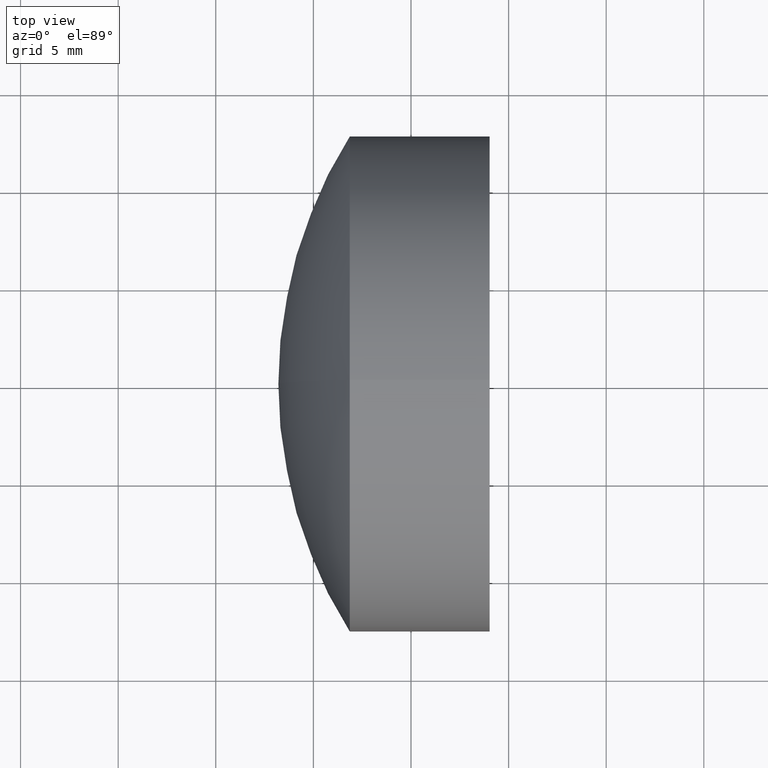
[diagram: clean part render]
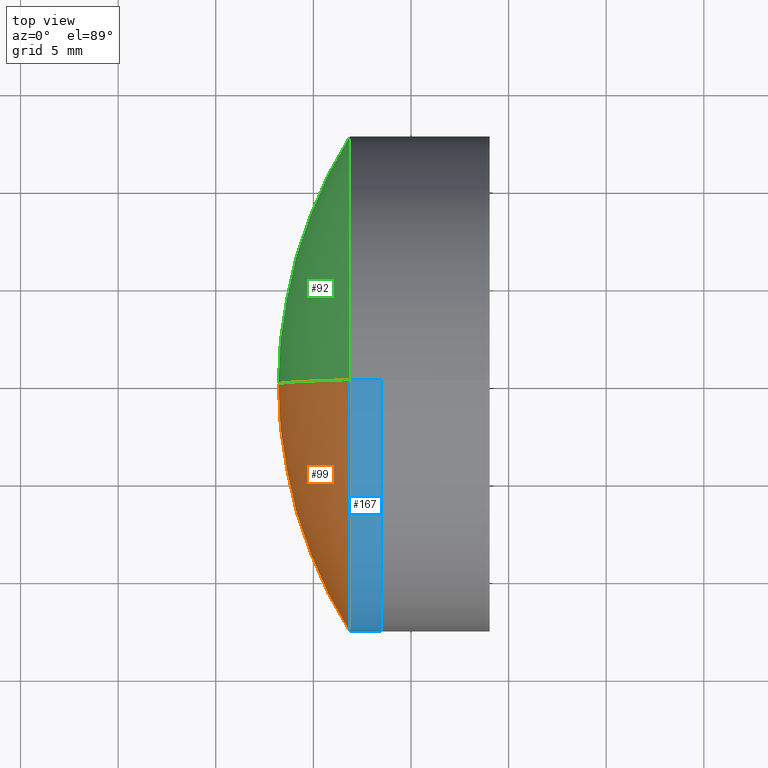
[diagram: same view with three faces highlighted in distinct colors, each labeled with its STEP entity id]
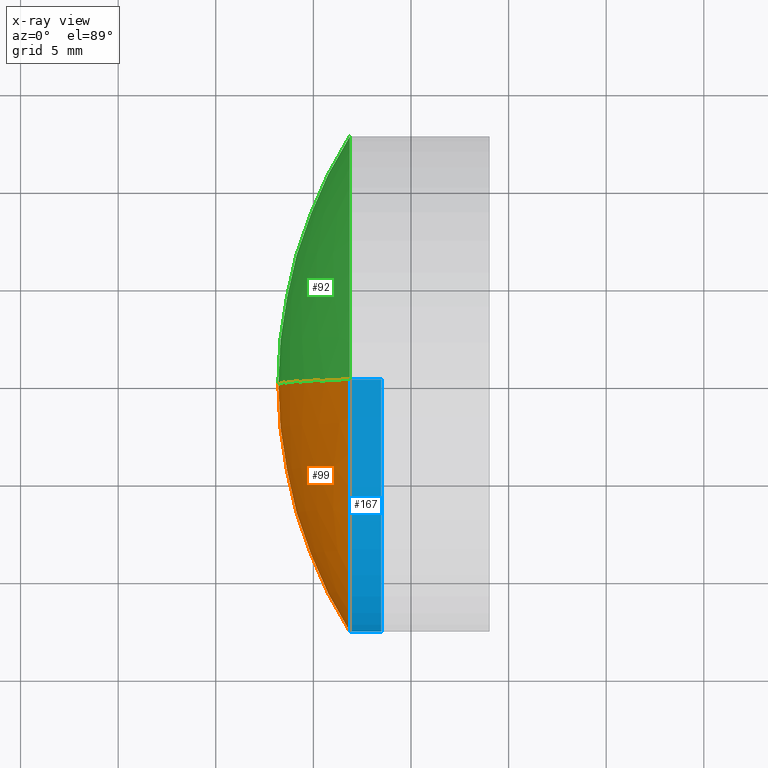
[diagram: x-ray of the same camera — body ghosted, the three highlighted faces saturated]
A machine part, top view with three faces highlighted in distinct colors.
The next image is the same camera in x-ray (body ghosted, the three faces saturated) — at least one of them is partly hidden behind the body in this view.
Their STEP definitions:

[orange] entity #99 — the highlighted spherical surface has radius 23.88 mm.
#1 = DIRECTION ( 'NONE',  ( 0.0000000000000000000, 1.000000000000000000, 0.0000000000000000000 ) ) ;
#20 = AXIS2_PLACEMENT_3D ( 'NONE', #57, #72, #110 ) ;
#25 = VERTEX_POINT ( 'NONE', #38 ) ;
#28 = DIRECTION ( 'NONE',  ( -1.000000000000000000, -0.0000000000000000000, -0.0000000000000000000 ) ) ;
#30 = CIRCLE ( 'NONE', #127, 23.87999999999999900 ) ;
#33 = EDGE_CURVE ( 'NONE', #25, #202, #288, .T. ) ;
#38 = CARTESIAN_POINT ( 'NONE',  ( 36.86375097237397100, 1.555301434917137400E-015, -12.69999999999999000 ) ) ;
#51 = SPHERICAL_SURFACE ( 'NONE', #209, 23.87999999999999900 ) ;
#57 = CARTESIAN_POINT ( 'NONE',  ( 57.08661921602329400, 0.0000000000000000000, -8.346372368148395400E-017 ) ) ;
#69 = CIRCLE ( 'NONE', #20, 23.87999999999999900 ) ;
#72 = DIRECTION ( 'NONE',  ( -0.0000000000000000000, 1.000000000000000000, 1.224646799147353200E-016 ) ) ;
#99 = ADVANCED_FACE ( 'NONE', ( #212 ), #51, .T. ) ;
#110 = DIRECTION ( 'NONE',  ( 0.0000000000000000000, -1.224646799147353000E-016, 1.000000000000000000 ) ) ;
#111 = CARTESIAN_POINT ( 'NONE',  ( 57.08661921602329400, 0.0000000000000000000, -8.346372368148395400E-017 ) ) ;
#127 = AXIS2_PLACEMENT_3D ( 'NONE', #155, #333, #290 ) ;
#129 = EDGE_CURVE ( 'NONE', #202, #294, #30, .T. ) ;
#133 = CARTESIAN_POINT ( 'NONE',  ( 36.86375097237397100, 0.0000000000000000000, 12.69999999999999000 ) ) ;
#155 = CARTESIAN_POINT ( 'NONE',  ( 57.08661921602329400, 0.0000000000000000000, -8.346372368148395400E-017 ) ) ;
#169 = CARTESIAN_POINT ( 'NONE',  ( 33.20661921602329900, 0.0000000000000000000, 1.378764554500455700E-015 ) ) ;
#176 = CARTESIAN_POINT ( 'NONE',  ( 36.86375097237397100, 0.0000000000000000000, 0.0000000000000000000 ) ) ;
#195 = EDGE_CURVE ( 'NONE', #25, #294, #69, .T. ) ;
#202 = VERTEX_POINT ( 'NONE', #133 ) ;
#209 = AXIS2_PLACEMENT_3D ( 'NONE', #111, #1, #344 ) ;
#212 = FACE_OUTER_BOUND ( 'NONE', #341, .T. ) ;
#225 = ORIENTED_EDGE ( 'NONE', *, *, #129, .T. ) ;
#227 = DIRECTION ( 'NONE',  ( 0.0000000000000000000, 0.0000000000000000000, 1.000000000000000000 ) ) ;
#239 = AXIS2_PLACEMENT_3D ( 'NONE', #176, #28, #227 ) ;
#248 = ORIENTED_EDGE ( 'NONE', *, *, #195, .F. ) ;
#288 = CIRCLE ( 'NONE', #239, 12.69999999999999400 ) ;
#290 = DIRECTION ( 'NONE',  ( 0.0000000000000000000, 0.0000000000000000000, -1.000000000000000000 ) ) ;
#294 = VERTEX_POINT ( 'NONE', #169 ) ;
#328 = ORIENTED_EDGE ( 'NONE', *, *, #33, .T. ) ;
#333 = DIRECTION ( 'NONE',  ( 0.0000000000000000000, -1.000000000000000000, 0.0000000000000000000 ) ) ;
#341 = EDGE_LOOP ( 'NONE', ( #248, #328, #225 ) ) ;
#344 = DIRECTION ( 'NONE',  ( 0.0000000000000000000, 0.0000000000000000000, 1.000000000000000000 ) ) ;

[blue] entity #167 — the highlighted cylindrical surface (partial cylindrical patch) has radius 12.7 mm, axis along (-1, -0, -0).
#4 = ORIENTED_EDGE ( 'NONE', *, *, #33, .F. ) ;
#21 = CIRCLE ( 'NONE', #297, 12.69999999999999400 ) ;
#25 = VERTEX_POINT ( 'NONE', #38 ) ;
#28 = DIRECTION ( 'NONE',  ( -1.000000000000000000, -0.0000000000000000000, -0.0000000000000000000 ) ) ;
#29 = EDGE_CURVE ( 'NONE', #231, #25, #322, .T. ) ;
#33 = EDGE_CURVE ( 'NONE', #25, #202, #288, .T. ) ;
#38 = CARTESIAN_POINT ( 'NONE',  ( 36.86375097237397100, 1.555301434917137400E-015, -12.69999999999999000 ) ) ;
#66 = CARTESIAN_POINT ( 'NONE',  ( -0.8160621761658039000, 0.0000000000000000000, 12.69999999999999400 ) ) ;
#68 = EDGE_LOOP ( 'NONE', ( #79, #253, #152, #4 ) ) ;
#79 = ORIENTED_EDGE ( 'NONE', *, *, #29, .F. ) ;
#83 = DIRECTION ( 'NONE',  ( -1.000000000000000000, -0.0000000000000000000, -0.0000000000000000000 ) ) ;
#91 = EDGE_CURVE ( 'NONE', #231, #241, #21, .T. ) ;
#95 = FACE_OUTER_BOUND ( 'NONE', #68, .T. ) ;
#100 = CARTESIAN_POINT ( 'NONE',  ( -0.8160621761658039000, 1.555301434917138000E-015, -12.69999999999999400 ) ) ;
#117 = CARTESIAN_POINT ( 'NONE',  ( -0.8160621761658039000, 0.0000000000000000000, 0.0000000000000000000 ) ) ;
#121 = EDGE_CURVE ( 'NONE', #241, #202, #135, .T. ) ;
#132 = AXIS2_PLACEMENT_3D ( 'NONE', #117, #339, #326 ) ;
#133 = CARTESIAN_POINT ( 'NONE',  ( 36.86375097237397100, 0.0000000000000000000, 12.69999999999999000 ) ) ;
#135 = LINE ( 'NONE', #66, #313 ) ;
#150 = DIRECTION ( 'NONE',  ( -1.000000000000000000, -0.0000000000000000000, -0.0000000000000000000 ) ) ;
#152 = ORIENTED_EDGE ( 'NONE', *, *, #121, .T. ) ;
#167 = ADVANCED_FACE ( 'NONE', ( #95 ), #310, .T. ) ;
#176 = CARTESIAN_POINT ( 'NONE',  ( 36.86375097237397100, 0.0000000000000000000, 0.0000000000000000000 ) ) ;
#202 = VERTEX_POINT ( 'NONE', #133 ) ;
#205 = CARTESIAN_POINT ( 'NONE',  ( 38.47534975385649100, 0.0000000000000000000, 0.0000000000000000000 ) ) ;
#215 = VECTOR ( 'NONE', #83, 1000.000000000000000 ) ;
#227 = DIRECTION ( 'NONE',  ( 0.0000000000000000000, 0.0000000000000000000, 1.000000000000000000 ) ) ;
#231 = VERTEX_POINT ( 'NONE', #251 ) ;
#239 = AXIS2_PLACEMENT_3D ( 'NONE', #176, #28, #227 ) ;
#241 = VERTEX_POINT ( 'NONE', #259 ) ;
#251 = CARTESIAN_POINT ( 'NONE',  ( 38.47534975385649100, 1.555301434917138000E-015, -12.69999999999999400 ) ) ;
#253 = ORIENTED_EDGE ( 'NONE', *, *, #91, .T. ) ;
#259 = CARTESIAN_POINT ( 'NONE',  ( 38.47534975385649100, 0.0000000000000000000, 12.69999999999999400 ) ) ;
#288 = CIRCLE ( 'NONE', #239, 12.69999999999999400 ) ;
#297 = AXIS2_PLACEMENT_3D ( 'NONE', #205, #345, #317 ) ;
#310 = CYLINDRICAL_SURFACE ( 'NONE', #132, 12.69999999999999400 ) ;
#313 = VECTOR ( 'NONE', #150, 1000.000000000000000 ) ;
#317 = DIRECTION ( 'NONE',  ( 0.0000000000000000000, 0.0000000000000000000, 1.000000000000000000 ) ) ;
#322 = LINE ( 'NONE', #100, #215 ) ;
#326 = DIRECTION ( 'NONE',  ( 0.0000000000000000000, 0.0000000000000000000, 1.000000000000000000 ) ) ;
#339 = DIRECTION ( 'NONE',  ( -1.000000000000000000, -0.0000000000000000000, -0.0000000000000000000 ) ) ;
#345 = DIRECTION ( 'NONE',  ( -1.000000000000000000, -0.0000000000000000000, -0.0000000000000000000 ) ) ;

[green] entity #92 — the highlighted spherical surface has radius 23.88 mm.
#20 = AXIS2_PLACEMENT_3D ( 'NONE', #57, #72, #110 ) ;
#25 = VERTEX_POINT ( 'NONE', #38 ) ;
#30 = CIRCLE ( 'NONE', #127, 23.87999999999999900 ) ;
#38 = CARTESIAN_POINT ( 'NONE',  ( 36.86375097237397100, 1.555301434917137400E-015, -12.69999999999999000 ) ) ;
#39 = CIRCLE ( 'NONE', #257, 12.69999999999999400 ) ;
#48 = CARTESIAN_POINT ( 'NONE',  ( 36.86375097237397100, 0.0000000000000000000, 0.0000000000000000000 ) ) ;
#52 = ORIENTED_EDGE ( 'NONE', *, *, #295, .T. ) ;
#55 = EDGE_LOOP ( 'NONE', ( #52, #219, #274 ) ) ;
#57 = CARTESIAN_POINT ( 'NONE',  ( 57.08661921602329400, 0.0000000000000000000, -8.346372368148395400E-017 ) ) ;
#69 = CIRCLE ( 'NONE', #20, 23.87999999999999900 ) ;
#72 = DIRECTION ( 'NONE',  ( -0.0000000000000000000, 1.000000000000000000, 1.224646799147353200E-016 ) ) ;
#82 = DIRECTION ( 'NONE',  ( -1.000000000000000000, -0.0000000000000000000, -0.0000000000000000000 ) ) ;
#85 = FACE_OUTER_BOUND ( 'NONE', #55, .T. ) ;
#92 = ADVANCED_FACE ( 'NONE', ( #85 ), #305, .T. ) ;
#108 = DIRECTION ( 'NONE',  ( 0.0000000000000000000, 0.0000000000000000000, 1.000000000000000000 ) ) ;
#110 = DIRECTION ( 'NONE',  ( 0.0000000000000000000, -1.224646799147353000E-016, 1.000000000000000000 ) ) ;
#127 = AXIS2_PLACEMENT_3D ( 'NONE', #155, #333, #290 ) ;
#129 = EDGE_CURVE ( 'NONE', #202, #294, #30, .T. ) ;
#133 = CARTESIAN_POINT ( 'NONE',  ( 36.86375097237397100, 0.0000000000000000000, 12.69999999999999000 ) ) ;
#155 = CARTESIAN_POINT ( 'NONE',  ( 57.08661921602329400, 0.0000000000000000000, -8.346372368148395400E-017 ) ) ;
#169 = CARTESIAN_POINT ( 'NONE',  ( 33.20661921602329900, 0.0000000000000000000, 1.378764554500455700E-015 ) ) ;
#195 = EDGE_CURVE ( 'NONE', #25, #294, #69, .T. ) ;
#202 = VERTEX_POINT ( 'NONE', #133 ) ;
#219 = ORIENTED_EDGE ( 'NONE', *, *, #195, .T. ) ;
#257 = AXIS2_PLACEMENT_3D ( 'NONE', #48, #82, #108 ) ;
#260 = CARTESIAN_POINT ( 'NONE',  ( 57.08661921602329400, 0.0000000000000000000, -8.346372368148395400E-017 ) ) ;
#268 = AXIS2_PLACEMENT_3D ( 'NONE', #260, #308, #330 ) ;
#274 = ORIENTED_EDGE ( 'NONE', *, *, #129, .F. ) ;
#290 = DIRECTION ( 'NONE',  ( 0.0000000000000000000, 0.0000000000000000000, -1.000000000000000000 ) ) ;
#294 = VERTEX_POINT ( 'NONE', #169 ) ;
#295 = EDGE_CURVE ( 'NONE', #202, #25, #39, .T. ) ;
#305 = SPHERICAL_SURFACE ( 'NONE', #268, 23.87999999999999900 ) ;
#308 = DIRECTION ( 'NONE',  ( 0.0000000000000000000, 1.000000000000000000, 0.0000000000000000000 ) ) ;
#330 = DIRECTION ( 'NONE',  ( 0.0000000000000000000, 0.0000000000000000000, 1.000000000000000000 ) ) ;
#333 = DIRECTION ( 'NONE',  ( 0.0000000000000000000, -1.000000000000000000, 0.0000000000000000000 ) ) ;